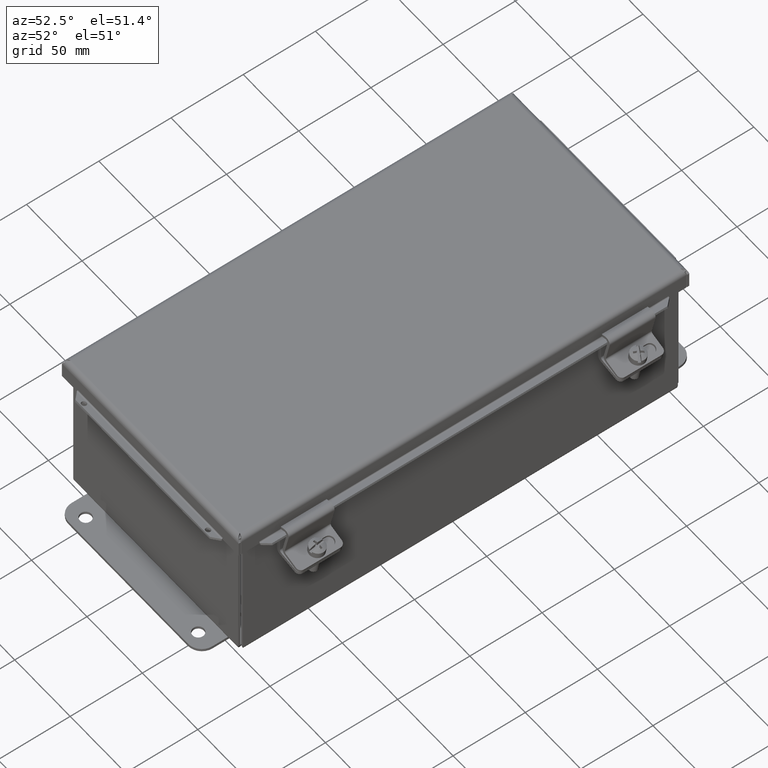
[diagram: clean part render]
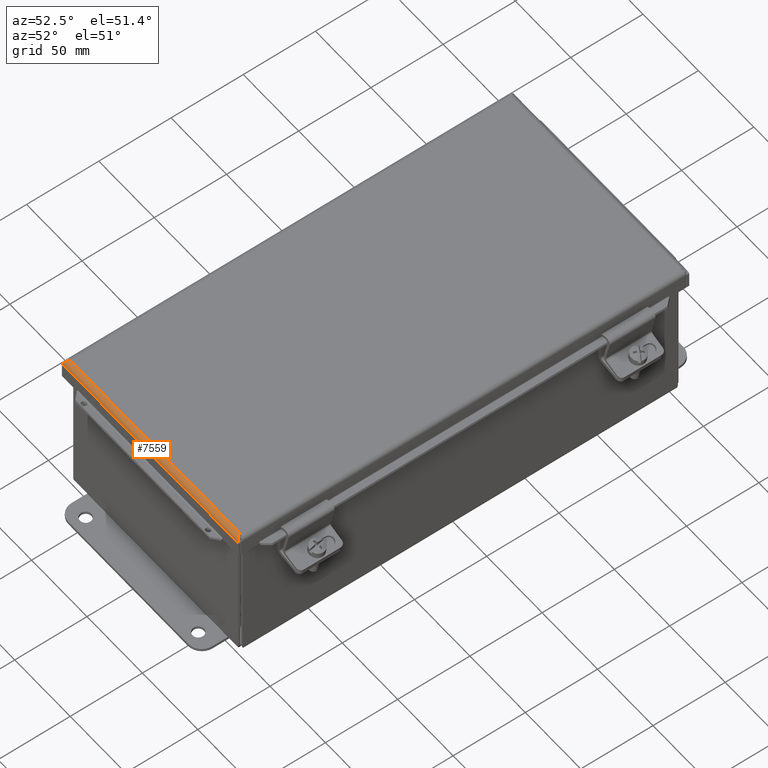
[diagram: same view with one face highlighted and labeled with its STEP entity id]
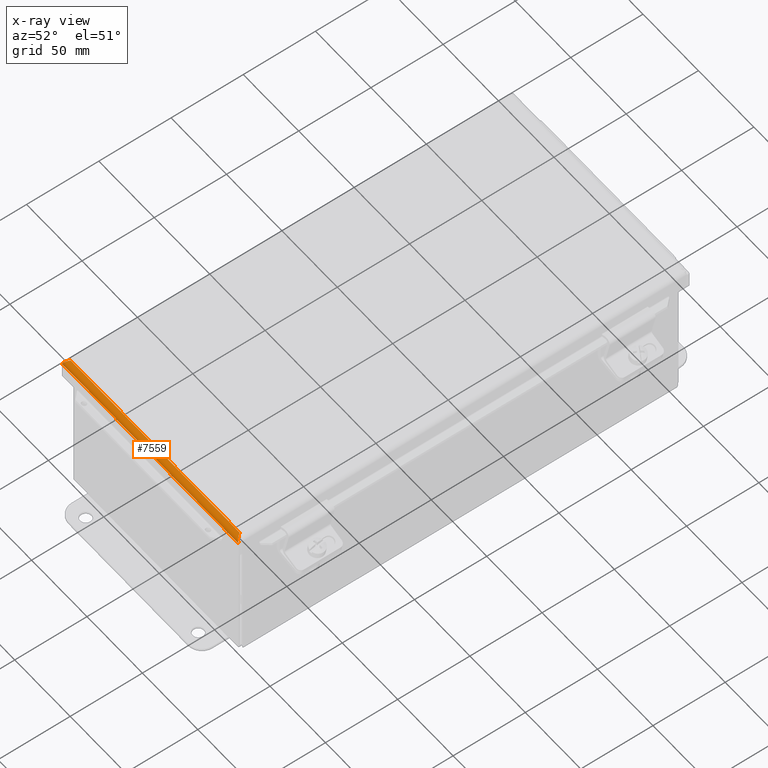
[diagram: x-ray of the same camera — body ghosted, the highlighted face saturated]
A machine part, auxiliary view. The second image highlights one B-rep face of the part: STEP entity #7559.
The next image is the same camera in x-ray: the body ghosted, the highlighted face saturated — about 0% of this face is hidden behind the body in this view.
In plain terms, the highlighted cylindrical surface (edge-blend (fillet) strip) has radius 3.483 mm, axis along (1, -0, 0).
Its self-contained STEP definition (entity closure, byte-faithful):
#175=B_SPLINE_CURVE_WITH_KNOTS('',3,(#12503,#12504,#12505,#12506,#12507,
#12508,#12509),.UNSPECIFIED.,.F.,.F.,(4,3,4),(-0.999999999999994,-0.428571428571426,
0.),.UNSPECIFIED.);
#182=B_SPLINE_CURVE_WITH_KNOTS('',3,(#12682,#12683,#12684,#12685,#12686,
#12687,#12688),.UNSPECIFIED.,.F.,.F.,(4,3,4),(-0.999999999999994,-0.428571428571425,
0.),.UNSPECIFIED.);
#1576=LINE('',#13412,#2314);
#1591=LINE('',#13448,#2329);
#2314=VECTOR('',#10224,0.393700787401575);
#2329=VECTOR('',#10281,0.393700787401575);
#2431=CYLINDRICAL_SURFACE('',#8368,0.137125000000037);
#2832=FACE_OUTER_BOUND('',#3300,.T.);
#3300=EDGE_LOOP('',(#7141,#7142,#7143,#7144));
#3985=VERTEX_POINT('',#12478);
#3986=VERTEX_POINT('',#12501);
#4017=VERTEX_POINT('',#12649);
#4018=VERTEX_POINT('',#12657);
#4882=EDGE_CURVE('',#3985,#3986,#175,.T.);
#4924=EDGE_CURVE('',#4018,#4017,#182,.T.);
#5126=EDGE_CURVE('',#3985,#4018,#1576,.T.);
#5141=EDGE_CURVE('',#4017,#3986,#1591,.T.);
#7141=ORIENTED_EDGE('',*,*,#5126,.F.);
#7142=ORIENTED_EDGE('',*,*,#4882,.T.);
#7143=ORIENTED_EDGE('',*,*,#5141,.F.);
#7144=ORIENTED_EDGE('',*,*,#4924,.F.);
#7559=ADVANCED_FACE('',(#2832),#2431,.T.);
#8368=AXIS2_PLACEMENT_3D('',#13447,#10279,#10280);
#10224=DIRECTION('',(-1.,-6.56142238937143E-16,0.));
#10279=DIRECTION('center_axis',(1.,5.0904679960905E-16,0.));
#10280=DIRECTION('ref_axis',(0.,-2.00531369212752E-15,1.));
#10281=DIRECTION('',(1.,4.65692083487965E-16,0.));
#12478=CARTESIAN_POINT('',(3.14062500000001,-6.14062500000004,-0.0781250000000006));
#12501=CARTESIAN_POINT('',(3.0035,-6.0035,0.0589999999999998));
#12503=CARTESIAN_POINT('Ctrl Pts',(3.14062500000001,-6.14062500000004,-0.0781249999999993));
#12504=CARTESIAN_POINT('Ctrl Pts',(3.114505952381,-6.14062500000004,-0.0370972959406158));
#12505=CARTESIAN_POINT('Ctrl Pts',(3.08838690476192,-6.12094522447945,0.0034885723623153));
#12506=CARTESIAN_POINT('Ctrl Pts',(3.06226785714283,-6.08902871177243,0.0290693000547631));
#12507=CARTESIAN_POINT('Ctrl Pts',(3.04267857142852,-6.06509132724216,0.048254845824099));
#12508=CARTESIAN_POINT('Ctrl Pts',(3.02308928571419,-6.03427077804453,0.059000000000038));
#12509=CARTESIAN_POINT('Ctrl Pts',(3.0035,-6.0035,0.0590000000000375));
#12649=CARTESIAN_POINT('',(-3.0035,-6.0035,0.0590000000000005));
#12657=CARTESIAN_POINT('',(-3.14062500000001,-6.14062500000004,-0.0781249999999981));
#12682=CARTESIAN_POINT('Ctrl Pts',(-3.14062500000001,-6.14062500000004,
-0.0781249999999968));
#12683=CARTESIAN_POINT('Ctrl Pts',(-3.11450595238089,-6.14062500000004,
-0.0370972959406043));
#12684=CARTESIAN_POINT('Ctrl Pts',(-3.08838690476187,-6.12094522447945,
0.00348857236232261));
#12685=CARTESIAN_POINT('Ctrl Pts',(-3.06226785714287,-6.08902871177242,
0.0290693000547673));
#12686=CARTESIAN_POINT('Ctrl Pts',(-3.04267857142862,-6.06509132724216,
0.0482548458241007));
#12687=CARTESIAN_POINT('Ctrl Pts',(-3.02308928571439,-6.03427077804452,
0.059000000000038));
#12688=CARTESIAN_POINT('Ctrl Pts',(-3.00349999999999,-6.0035,0.0590000000000375));
#13412=CARTESIAN_POINT('',(-6.99353086378051E-16,-6.140625,-0.0781250000000003));
#13447=CARTESIAN_POINT('Origin',(-6.99353086378051E-16,-6.0035,-0.0781249999999999));
#13448=CARTESIAN_POINT('',(-1.50175,-6.0035,0.0589999999999998));